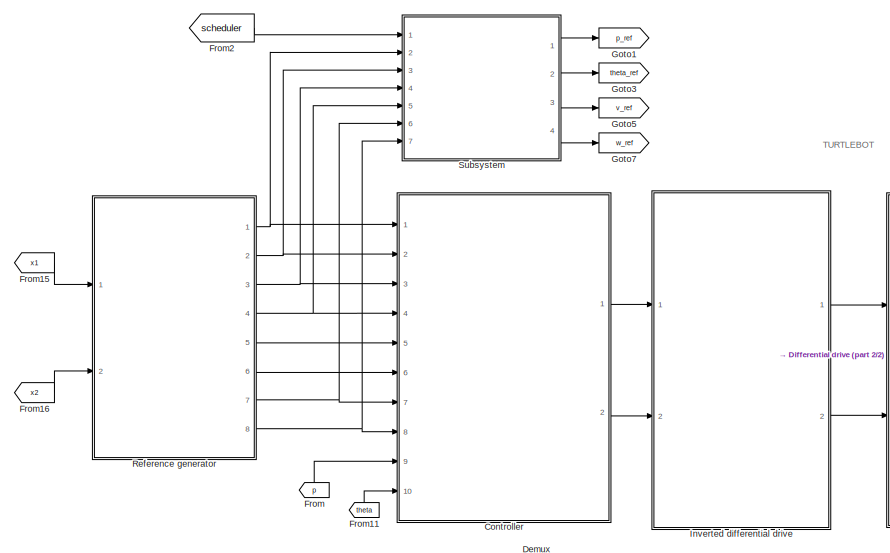
[diagram: root canvas - part 1/2, middle left region]
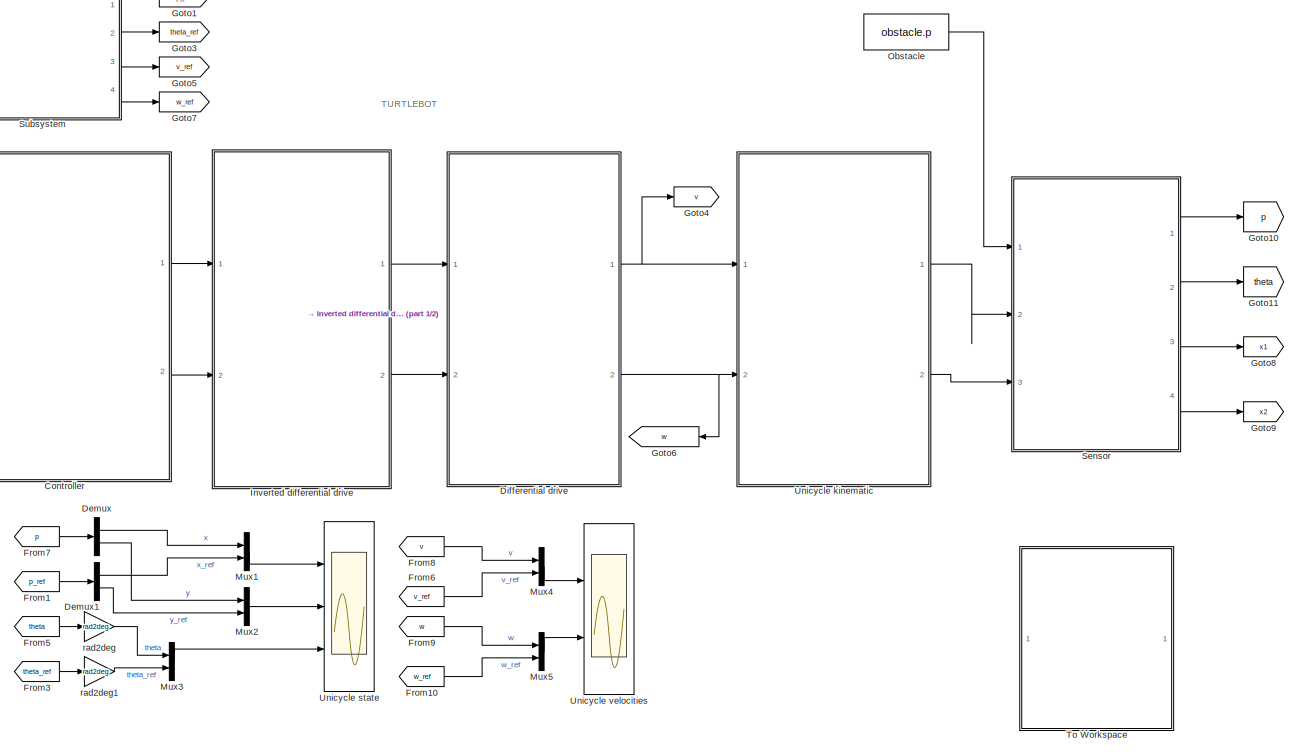
[diagram: root canvas - part 2/2, most of the canvas]
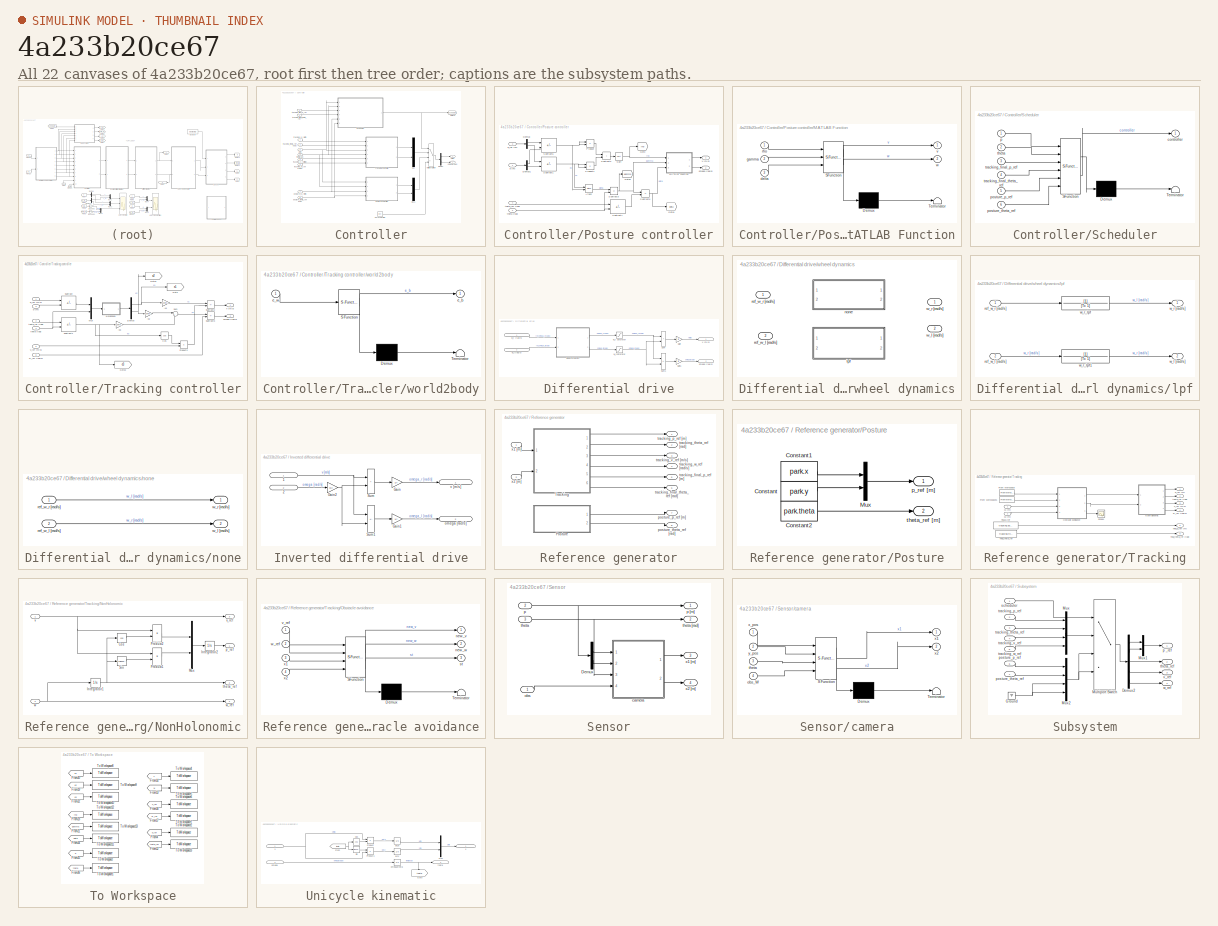
[diagram: thumbnail index - all 22 canvases of the model, root first then tree order]
MODEL slx_4a233b20ce67
KIND model
CONFIG AbsTol = auto
CONFIG EnableMultiTasking = off
CONFIG FixedStep = simulation.step_size
CONFIG MaxStep = auto
CONFIG MinStep = auto
CONFIG PreLoadFcn = % initialize variables\ninitializeUnicycleModel;
CONFIG RelTol = 1e-5
CONFIG SampleTimeConstraint = Unconstrained
CONFIG SolverName = FixedStepAuto
CONFIG StartTime = 0.0
CONFIG StopTime = simulation.stop_time
BLOCK [SubSystem] Controller
  Ports = [10, 2]
  RequestExecContextInheritance = off
BLOCK [Demux] Controller/Demux
  Outputs = 2
  Ports = [1, 2]
BLOCK [Goto] Controller/Goto10
  GotoTag = scheduler
  TagVisibility = global
BLOCK [MultiPortSwitch] Controller/Multiport Switch
  InputSameDT = off
  Ports = [4, 1]
  SaturateOnIntegerOverflow = off
BLOCK [Mux] Controller/Mux
  DisplayOption = bar
  Inputs = 2
  Ports = [2, 1]
BLOCK [Mux] Controller/Mux1
  DisplayOption = bar
  Inputs = 2
  Ports = [2, 1]
BLOCK [SubSystem] Controller/Posture controller
  Ports = [4, 2]
  RequestExecContextInheritance = off
BLOCK [Trigonometry] Controller/Posture controller/Atan2
  Operator = atan2
  Ports = [2, 1]
BLOCK [Demux] Controller/Posture controller/Demux
  Outputs = 2
  Ports = [1, 2]
BLOCK [Demux] Controller/Posture controller/Demux1
  Outputs = 2
  Ports = [1, 2]
BLOCK [Goto] Controller/Posture controller/Goto
  GotoTag = rho
  TagVisibility = global
BLOCK [Goto] Controller/Posture controller/Goto1
  GotoTag = delta
  TagVisibility = global
BLOCK [Goto] Controller/Posture controller/Goto2
  GotoTag = gamma
  TagVisibility = global
BLOCK [SubSystem] Controller/Posture controller/MATLAB Function
  ErrorFcn = Stateflow.Translate.translate
  PermitHierarchicalResolution = ExplicitOnly
  Ports = [3, 2]
  RequestExecContextInheritance = off
  SFBlockType = MATLAB Function
  TreatAsAtomicUnit = on
BLOCK [Demux] Controller/Posture controller/MATLAB Function/ Demux 
  Outputs = 1
  Ports = [1, 1]
BLOCK [S-Function] Controller/Posture controller/MATLAB Function/ SFunction 
  EnableBusSupport = on
  FunctionName = sf_sfun
  Parameters = controller
  PortCounts = [3 3]
  Ports = [3, 3]
  SFcnIsStateOwnerBlock = off
  SFunctionDeploymentMode = off
  Tag = Stateflow S-Function 5
BLOCK [Terminator] Controller/Posture controller/MATLAB Function/ Terminator 
BLOCK [Inport] Controller/Posture controller/MATLAB Function/delta
  Port = 3
BLOCK [Inport] Controller/Posture controller/MATLAB Function/gamma
  Port = 2
BLOCK [Inport] Controller/Posture controller/MATLAB Function/rho
BLOCK [Outport] Controller/Posture controller/MATLAB Function/v
BLOCK [Outport] Controller/Posture controller/MATLAB Function/w
  Port = 2
BLOCK [Product] Controller/Posture controller/Product
  Ports = [2, 1]
BLOCK [Product] Controller/Posture controller/Product1
  Ports = [2, 1]
BLOCK [Sqrt] Controller/Posture controller/Sqrt
BLOCK [Sum] Controller/Posture controller/Subtract1
  IconShape = rectangular
  Inputs = +-
  Ports = [2, 1]
BLOCK [Sum] Controller/Posture controller/Subtract2
  IconShape = rectangular
  Ports = [2, 1]
BLOCK [Sum] Controller/Posture controller/Subtract3
  IconShape = rectangular
  Inputs = +-
  Ports = [2, 1]
BLOCK [Sum] Controller/Posture controller/Subtract5
  IconShape = rectangular
  Inputs = +-
  Ports = [2, 1]
BLOCK [Sum] Controller/Posture controller/Subtract6
  IconShape = rectangular
  Inputs = +-
  Ports = [2, 1]
BLOCK [Sum] Controller/Posture controller/Subtract7
  IconShape = rectangular
  Inputs = +-
  Ports = [2, 1]
BLOCK [Outport] Controller/Posture controller/omega [rad//s]
  Port = 2
BLOCK [Inport] Controller/Posture controller/p [m]
BLOCK [Inport] Controller/Posture controller/p_ref [m]
  Port = 3
BLOCK [Inport] Controller/Posture controller/theta [rad]
  Port = 2
BLOCK [Inport] Controller/Posture controller/theta_ref [rad]
  Port = 4
BLOCK [Outport] Controller/Posture controller/v [m//s]
BLOCK [SubSystem] Controller/Scheduler
  ErrorFcn = Stateflow.Translate.translate
  PermitHierarchicalResolution = ExplicitOnly
  Ports = [6, 1]
  RequestExecContextInheritance = off
  SFBlockType = MATLAB Function
  TreatAsAtomicUnit = on
BLOCK [Demux] Controller/Scheduler/ Demux 
  Outputs = 1
  Ports = [1, 1]
BLOCK [S-Function] Controller/Scheduler/ SFunction 
  EnableBusSupport = on
  FunctionName = sf_sfun
  Parameters = scheduler,simulation
  PortCounts = [6 2]
  Ports = [6, 2]
  SFcnIsStateOwnerBlock = off
  SFunctionDeploymentMode = off
  Tag = Stateflow S-Function 4
BLOCK [Terminator] Controller/Scheduler/ Terminator 
BLOCK [Outport] Controller/Scheduler/controller
BLOCK [Inport] Controller/Scheduler/p
BLOCK [Inport] Controller/Scheduler/posture_p_ref
  Port = 5
BLOCK [Inport] Controller/Scheduler/posture_theta_ref
  Port = 6
BLOCK [Inport] Controller/Scheduler/theta
  Port = 2
BLOCK [Inport] Controller/Scheduler/tracking_final_p_ref
  Port = 3
BLOCK [Inport] Controller/Scheduler/tracking_final_theta_ref
  Port = 4
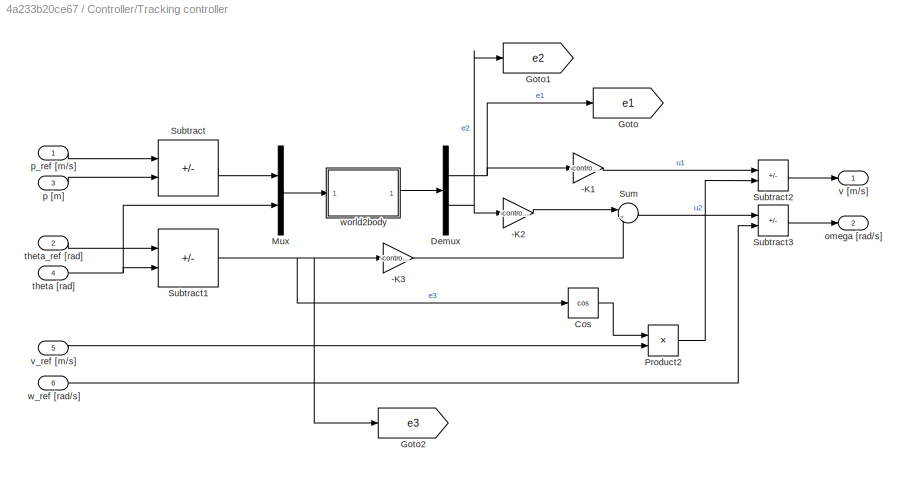
BLOCK [SubSystem] Controller/Tracking controller
  Ports = [6, 2]
  RequestExecContextInheritance = off
BLOCK [Gain] Controller/Tracking controller/-K1
  Gain = -controller.tracking.K1
BLOCK [Gain] Controller/Tracking controller/-K2
  Gain = -controller.tracking.K2
BLOCK [Gain] Controller/Tracking controller/-K3
  Gain = -controller.tracking.K3
BLOCK [Trigonometry] Controller/Tracking controller/Cos
  Operator = cos
  Ports = [1, 1]
BLOCK [Demux] Controller/Tracking controller/Demux
  Outputs = 2
  Ports = [1, 2]
BLOCK [Goto] Controller/Tracking controller/Goto
  GotoTag = e1
  TagVisibility = global
BLOCK [Goto] Controller/Tracking controller/Goto1
  GotoTag = e2
  TagVisibility = global
BLOCK [Goto] Controller/Tracking controller/Goto2
  GotoTag = e3
  TagVisibility = global
BLOCK [Mux] Controller/Tracking controller/Mux
  DisplayOption = bar
  Inputs = 2
  Ports = [2, 1]
BLOCK [Product] Controller/Tracking controller/Product2
  Ports = [2, 1]
BLOCK [Sum] Controller/Tracking controller/Subtract
  IconShape = rectangular
  Inputs = +-
  Ports = [2, 1]
BLOCK [Sum] Controller/Tracking controller/Subtract1
  IconShape = rectangular
  Inputs = +-
  Ports = [2, 1]
BLOCK [Sum] Controller/Tracking controller/Subtract2
  IconShape = rectangular
  Inputs = -+
  Ports = [2, 1]
BLOCK [Sum] Controller/Tracking controller/Subtract3
  IconShape = rectangular
  Inputs = -+
  Ports = [2, 1]
BLOCK [Sum] Controller/Tracking controller/Sum
  Inputs = |++
  Ports = [2, 1]
BLOCK [Outport] Controller/Tracking controller/omega [rad//s]
  Port = 2
BLOCK [Inport] Controller/Tracking controller/p [m]
  Port = 3
BLOCK [Inport] Controller/Tracking controller/p_ref [m//s]
BLOCK [Inport] Controller/Tracking controller/theta [rad]
  Port = 4
BLOCK [Inport] Controller/Tracking controller/theta_ref [rad]
  Port = 2
BLOCK [Outport] Controller/Tracking controller/v [m//s]
BLOCK [Inport] Controller/Tracking controller/v_ref [m//s]
  Port = 5
BLOCK [Inport] Controller/Tracking controller/w_ref [rad//s]
  Port = 6
BLOCK [SubSystem] Controller/Tracking controller/world2body
  ErrorFcn = Stateflow.Translate.translate
  PermitHierarchicalResolution = ExplicitOnly
  Ports = [1, 1]
  RequestExecContextInheritance = off
  SFBlockType = MATLAB Function
  TreatAsAtomicUnit = on
BLOCK [Demux] Controller/Tracking controller/world2body/ Demux 
  Outputs = 1
  Ports = [1, 1]
BLOCK [S-Function] Controller/Tracking controller/world2body/ SFunction 
  EnableBusSupport = on
  FunctionName = sf_sfun
  PortCounts = [1 2]
  Ports = [1, 2]
  SFcnIsStateOwnerBlock = off
  SFunctionDeploymentMode = off
  Tag = Stateflow S-Function 3
BLOCK [Terminator] Controller/Tracking controller/world2body/ Terminator 
BLOCK [Outport] Controller/Tracking controller/world2body/e_b
BLOCK [Inport] Controller/Tracking controller/world2body/e_w
BLOCK [Constant] Controller/Zero controller
  Value = [0 0]
BLOCK [Outport] Controller/omega [rad//s]
  Port = 2
BLOCK [Inport] Controller/p [m]
  Port = 9
BLOCK [Inport] Controller/posture_p_ref [m]
  Port = 7
BLOCK [Inport] Controller/posture_theta_ref [rad]
  Port = 8
BLOCK [Inport] Controller/theta [rad]
  Port = 10
BLOCK [Inport] Controller/tracking_final_p_ref
  Port = 5
BLOCK [Inport] Controller/tracking_final_theta_ref
  Port = 6
BLOCK [Inport] Controller/tracking_p_ref [m]
BLOCK [Inport] Controller/tracking_theta_ref [rad]
  Port = 2
BLOCK [Inport] Controller/tracking_v_ref [m//s]
  Port = 3
BLOCK [Inport] Controller/tracking_w_ref [rad//s]
  Port = 4
BLOCK [Outport] Controller/v [m//s]
BLOCK [Demux] Demux
  Outputs = 2
  Ports = [1, 2]
BLOCK [Demux] Demux1
  Outputs = 2
  Ports = [1, 2]
BLOCK [SubSystem] Differential drive
  Ports = [2, 2]
  RequestExecContextInheritance = off
BLOCK [Gain] Differential drive/Gain
  Gain = r/2
BLOCK [Gain] Differential drive/Gain1
  Gain = r/d
BLOCK [Sum] Differential drive/Sum
  IconShape = rectangular
  Ports = [2, 1]
BLOCK [Sum] Differential drive/Sum1
  IconShape = rectangular
  Inputs = +-
  Ports = [2, 1]
BLOCK [Outport] Differential drive/omega [rad//s]
  IconDisplay = Signal name
  Port = 2
  Unit = rad/s
BLOCK [Outport] Differential drive/v [m//s]
  IconDisplay = Signal name
  Unit = m/s
BLOCK [Inport] Differential drive/w_l [rad//s]
  IconDisplay = Signal name
  Port = 2
  Unit = rad/s
BLOCK [Saturate] Differential drive/w_l saturator
  LowerLimit = wheelsSpeedLowerLimit
  UpperLimit = wheelsSpeedUpperLimit
BLOCK [Inport] Differential drive/w_r [rad//s]
  IconDisplay = Signal name
  Unit = rad/s
BLOCK [Saturate] Differential drive/w_r saturator
  LowerLimit = wheelsSpeedLowerLimit
  UpperLimit = wheelsSpeedUpperLimit
BLOCK [SubSystem] Differential drive/wheel dynamics
  Ports = [2, 2]
  RequestExecContextInheritance = off
  Variant = on
BLOCK [SubSystem] Differential drive/wheel dynamics/lpf
  Ports = [2, 2]
  RequestExecContextInheritance = off
  VariantControl = wheelDyEn==true
BLOCK [Inport] Differential drive/wheel dynamics/lpf/ref_w_l [rad//s]
  Port = 2
BLOCK [Inport] Differential drive/wheel dynamics/lpf/ref_w_r [rad//s]
BLOCK [Outport] Differential drive/wheel dynamics/lpf/w_l [rad//s]
  Port = 2
BLOCK [Outport] Differential drive/wheel dynamics/lpf/w_r [rad//s]
BLOCK [TransferFcn] Differential drive/wheel dynamics/lpf/w_r_lpf
  ContinuousStateAttributes = 'w_r_lpf'
  Denominator = [Tc 1]
BLOCK [TransferFcn] Differential drive/wheel dynamics/lpf/w_r_lpf1
  ContinuousStateAttributes = 'w_r_lpf'
  Denominator = [Tc 1]
BLOCK [SubSystem] Differential drive/wheel dynamics/none
  Ports = [2, 2]
  RequestExecContextInheritance = off
  VariantControl = wheelDyEn==false
BLOCK [Inport] Differential drive/wheel dynamics/none/ref_w_l [rad//s]
  Port = 2
BLOCK [Inport] Differential drive/wheel dynamics/none/ref_w_r [rad//s]
BLOCK [Outport] Differential drive/wheel dynamics/none/w_l [rad//s]
  Port = 2
BLOCK [Outport] Differential drive/wheel dynamics/none/w_r [rad//s]
BLOCK [Inport] Differential drive/wheel dynamics/ref_w_l [rad//s]
  Port = 2
BLOCK [Inport] Differential drive/wheel dynamics/ref_w_r [rad//s]
BLOCK [Outport] Differential drive/wheel dynamics/w_l [rad//s]
  Port = 2
BLOCK [Outport] Differential drive/wheel dynamics/w_r [rad//s]
BLOCK [From] From
  GotoTag = p
  NameLocation = right
  TagVisibility = global
BLOCK [From] From1
  GotoTag = p_ref
  TagVisibility = global
BLOCK [From] From10
  GotoTag = w_ref
  TagVisibility = global
BLOCK [From] From11
  GotoTag = theta
  NameLocation = right
  TagVisibility = global
BLOCK [From] From15
  GotoTag = x1
BLOCK [From] From16
  GotoTag = x2
BLOCK [From] From2
  GotoTag = scheduler
  TagVisibility = global
BLOCK [From] From3
  GotoTag = theta_ref
  TagVisibility = global
BLOCK [From] From5
  GotoTag = theta
  TagVisibility = global
BLOCK [From] From6
  GotoTag = v_ref
  TagVisibility = global
BLOCK [From] From7
  GotoTag = p
  TagVisibility = global
BLOCK [From] From8
  GotoTag = v
  TagVisibility = global
BLOCK [From] From9
  GotoTag = w
  TagVisibility = global
BLOCK [Goto] Goto1
  GotoTag = p_ref
  TagVisibility = global
BLOCK [Goto] Goto10
  GotoTag = p
  TagVisibility = global
BLOCK [Goto] Goto11
  GotoTag = theta
  TagVisibility = global
BLOCK [Goto] Goto3
  GotoTag = theta_ref
  TagVisibility = global
BLOCK [Goto] Goto4
  GotoTag = v
  TagVisibility = global
BLOCK [Goto] Goto5
  GotoTag = v_ref
  TagVisibility = global
BLOCK [Goto] Goto6
  GotoTag = w
  NameLocation = top
  TagVisibility = global
BLOCK [Goto] Goto7
  GotoTag = w_ref
  TagVisibility = global
BLOCK [Goto] Goto8
  GotoTag = x1
BLOCK [Goto] Goto9
  GotoTag = x2
BLOCK [SubSystem] Inverted differential drive
  Ports = [2, 2]
  RequestExecContextInheritance = off
BLOCK [Inport] Inverted differential drive/1
  IconDisplay = Signal name
  Unit = m/s
BLOCK [Inport] Inverted differential drive/2
  IconDisplay = Signal name
  Port = 2
  Unit = rad/s
BLOCK [Gain] Inverted differential drive/Gain
  Gain = 1/r
BLOCK [Gain] Inverted differential drive/Gain1
  Gain = 1/r
BLOCK [Gain] Inverted differential drive/Gain2
  Gain = d/2
BLOCK [Sum] Inverted differential drive/Sum
  IconShape = rectangular
  Ports = [2, 1]
BLOCK [Sum] Inverted differential drive/Sum1
  IconShape = rectangular
  Inputs = +-
  Ports = [2, 1]
BLOCK [Outport] Inverted differential drive/omega [rad//s]
  IconDisplay = Signal name
  Port = 2
  Unit = rad/s
BLOCK [Outport] Inverted differential drive/v [m//s]
  IconDisplay = Signal name
  Unit = rad/s
BLOCK [Mux] Mux1
  DisplayOption = bar
  Inputs = 2
  Ports = [2, 1]
BLOCK [Mux] Mux2
  DisplayOption = bar
  Inputs = 2
  Ports = [2, 1]
BLOCK [Mux] Mux3
  DisplayOption = bar
  Inputs = 2
  Ports = [2, 1]
BLOCK [Mux] Mux4
  DisplayOption = bar
  Inputs = 2
  Ports = [2, 1]
BLOCK [Mux] Mux5
  DisplayOption = bar
  Inputs = 2
  Ports = [2, 1]
BLOCK [Constant] Obstacle
  Value = obstacle.p
BLOCK [SubSystem] Reference generator
  Ports = [2, 8]
  RequestExecContextInheritance = off
BLOCK [SubSystem] Reference generator/Posture
  Ports = [0, 2]
  RequestExecContextInheritance = off
BLOCK [Constant] Reference generator/Posture/Constant
  SampleTime = unicycle.diffDrive.Td
  Value = park.y
BLOCK [Constant] Reference generator/Posture/Constant1
  SampleTime = unicycle.diffDrive.Td
  Value = park.x
BLOCK [Constant] Reference generator/Posture/Constant2
  SampleTime = unicycle.diffDrive.Td
  Value = park.theta
BLOCK [Mux] Reference generator/Posture/Mux
  DisplayOption = bar
  Inputs = 2
  Ports = [2, 1]
BLOCK [Outport] Reference generator/Posture/p_ref [m]
BLOCK [Outport] Reference generator/Posture/theta_ref [m]
  Port = 2
BLOCK [SubSystem] Reference generator/Tracking
  Ports = [2, 6]
  RequestExecContextInheritance = off
BLOCK [FromWorkspace] Reference generator/Tracking/From Workspace
  SampleTime = unicycle.diffDrive.Td
  VariableName = tracking.v_ts
BLOCK [FromWorkspace] Reference generator/Tracking/From Workspace1
  SampleTime = unicycle.diffDrive.Td
  VariableName = tracking.w_ts
BLOCK [SubSystem] Reference generator/Tracking/NonHolonomic
  Ports = [2, 4]
  RequestExecContextInheritance = off
BLOCK [Trigonometry] Reference generator/Tracking/NonHolonomic/Cos
  Operator = cos
  Ports = [1, 1]
BLOCK [Integrator] Reference generator/Tracking/NonHolonomic/Integrator1
  InitialCondition = tracking.theta0
  Ports = [1, 1]
BLOCK [Integrator] Reference generator/Tracking/NonHolonomic/Integrator2
  InitialCondition = [tracking.x0 tracking.y0]
  Ports = [1, 1]
BLOCK [Mux] Reference generator/Tracking/NonHolonomic/Mux
  DisplayOption = bar
  Inputs = 2
  Ports = [2, 1]
BLOCK [Product] Reference generator/Tracking/NonHolonomic/Product1
  Ports = [2, 1]
BLOCK [Product] Reference generator/Tracking/NonHolonomic/Product2
  Ports = [2, 1]
BLOCK [Trigonometry] Reference generator/Tracking/NonHolonomic/Sin
  Ports = [1, 1]
BLOCK [Outport] Reference generator/Tracking/NonHolonomic/p_ref
BLOCK [Outport] Reference generator/Tracking/NonHolonomic/theta_ref
  Port = 2
BLOCK [Inport] Reference generator/Tracking/NonHolonomic/v
BLOCK [Outport] Reference generator/Tracking/NonHolonomic/v_ref
  Port = 3
BLOCK [Inport] Reference generator/Tracking/NonHolonomic/w
  Port = 2
BLOCK [Outport] Reference generator/Tracking/NonHolonomic/w_ref
  Port = 4
BLOCK [SubSystem] Reference generator/Tracking/Obstacle avoidance
  ErrorFcn = Stateflow.Translate.translate
  PermitHierarchicalResolution = ExplicitOnly
  Ports = [4, 3]
  RequestExecContextInheritance = off
  SFBlockType = MATLAB Function
  TreatAsAtomicUnit = on
BLOCK [Demux] Reference generator/Tracking/Obstacle avoidance/ Demux 
  Outputs = 1
  Ports = [1, 1]
BLOCK [S-Function] Reference generator/Tracking/Obstacle avoidance/ SFunction 
  EnableBusSupport = on
  FunctionName = sf_sfun
  Parameters = camera,simulation,unicycle
  PortCounts = [4 4]
  Ports = [4, 4]
  SFcnIsStateOwnerBlock = off
  SFunctionDeploymentMode = off
  Tag = Stateflow S-Function 9
BLOCK [Terminator] Reference generator/Tracking/Obstacle avoidance/ Terminator 
BLOCK [Outport] Reference generator/Tracking/Obstacle avoidance/new_v
BLOCK [Outport] Reference generator/Tracking/Obstacle avoidance/new_w
  Port = 2
BLOCK [Outport] Reference generator/Tracking/Obstacle avoidance/st
  Port = 3
BLOCK [Inport] Reference generator/Tracking/Obstacle avoidance/v_ref
BLOCK [Inport] Reference generator/Tracking/Obstacle avoidance/w_ref
  Port = 2
BLOCK [Inport] Reference generator/Tracking/Obstacle avoidance/x1
  Port = 3
BLOCK [Inport] Reference generator/Tracking/Obstacle avoidance/x2
  Port = 4
BLOCK [Scope] Reference generator/Tracking/Scope1
  Floating = off
  NumInputPorts = 1
  Ports = [1]
  ScopeSpecificationString = Simulink.scopes.TimeScopeBlockCfg('CurrentConfiguration', extmgr.ConfigurationSet(extmgr.Configuration('Core','General UI',true),extmgr.Configuration('Core','Source UI',true),extmgr.Configuration('Sources','WiredSimulink',true,'DataLoggingVariableName','ScopeData1'),extmgr.Configuration('Visuals','Time Domain',true,'SerializedDisplays',{struct('MinYLimReal','-0.625','MaxYLimReal','5.625','YLabelRe...<+1397ch>
BLOCK [Constant] Reference generator/Tracking/final_p_ref
  Value = tracking.points(end,:)
BLOCK [Outport] Reference generator/Tracking/final_p_ref [m]
  Port = 5
BLOCK [Constant] Reference generator/Tracking/final_theta_ref
  Value = tracking.theta(end)
BLOCK [Outport] Reference generator/Tracking/final_theta_ref [rad]
  Port = 6
BLOCK [Outport] Reference generator/Tracking/p_ref [m]
BLOCK [Outport] Reference generator/Tracking/theta_ref [rad]
  Port = 2
BLOCK [Outport] Reference generator/Tracking/v_ref [m//s]
  Port = 3
BLOCK [Outport] Reference generator/Tracking/w_ref [rad//s]
  Port = 4
BLOCK [Inport] Reference generator/Tracking/x1 [m]
BLOCK [Inport] Reference generator/Tracking/x2 [m]
  Port = 2
BLOCK [Outport] Reference generator/posture_p_ref [m]
  Port = 7
BLOCK [Outport] Reference generator/posture_theta_ref [rad]
  Port = 8
BLOCK [Outport] Reference generator/tracking_final_p_ref [m]
  Port = 5
BLOCK [Outport] Reference generator/tracking_final_theta_ref [rad]
  Port = 6
BLOCK [Outport] Reference generator/tracking_p_ref [m]
BLOCK [Outport] Reference generator/tracking_theta_ref [rad]
  Port = 2
BLOCK [Outport] Reference generator/tracking_v_ref [m//s]
  Port = 3
BLOCK [Outport] Reference generator/tracking_w_ref [rad//s]
  Port = 4
BLOCK [Inport] Reference generator/x1 [m]
BLOCK [Inport] Reference generator/x2 [m]
  Port = 2
BLOCK [SubSystem] Sensor
  Ports = [3, 4]
  RequestExecContextInheritance = off
BLOCK [Demux] Sensor/Demux
  Outputs = 2
  Ports = [1, 2]
BLOCK [SubSystem] Sensor/camera
  ErrorFcn = Stateflow.Translate.translate
  PermitHierarchicalResolution = ExplicitOnly
  Ports = [4, 2]
  RequestExecContextInheritance = off
  SFBlockType = MATLAB Function
  TreatAsAtomicUnit = on
BLOCK [Demux] Sensor/camera/ Demux 
  Outputs = 1
  Ports = [1, 1]
BLOCK [S-Function] Sensor/camera/ SFunction 
  EnableBusSupport = on
  FunctionName = sf_sfun
  Parameters = camera,unicycle
  PortCounts = [4 3]
  Ports = [4, 3]
  SFcnIsStateOwnerBlock = off
  SFunctionDeploymentMode = off
  Tag = Stateflow S-Function 7
BLOCK [Terminator] Sensor/camera/ Terminator 
BLOCK [Inport] Sensor/camera/obs_W
  Port = 4
BLOCK [Inport] Sensor/camera/theta
  Port = 3
BLOCK [Outport] Sensor/camera/x1
BLOCK [Outport] Sensor/camera/x2
  Port = 2
BLOCK [Inport] Sensor/camera/x_pos
BLOCK [Inport] Sensor/camera/y_pos
  Port = 2
BLOCK [Inport] Sensor/obs
BLOCK [Inport] Sensor/p
  Port = 2
BLOCK [Outport] Sensor/p [m]
BLOCK [Inport] Sensor/theta
  Port = 3
BLOCK [Outport] Sensor/theta [rad]
  Port = 2
BLOCK [Outport] Sensor/x1 [m]
  Port = 3
BLOCK [Outport] Sensor/x2 [m]
  Port = 4
BLOCK [SubSystem] Subsystem
  Ports = [7, 4]
  RequestExecContextInheritance = off
BLOCK [Demux] Subsystem/Demux2
  Outputs = 5
  Ports = [1, 5]
BLOCK [Ground] Subsystem/Ground
BLOCK [MultiPortSwitch] Subsystem/Multiport Switch
  InputSameDT = off
  Ports = [4, 1]
  SaturateOnIntegerOverflow = off
BLOCK [Mux] Subsystem/Mux
  DisplayOption = bar
  Ports = [4, 1]
BLOCK [Mux] Subsystem/Mux1
  DisplayOption = bar
  Inputs = 2
  Ports = [2, 1]
BLOCK [Mux] Subsystem/Mux2
  DisplayOption = bar
  Ports = [4, 1]
BLOCK [Outport] Subsystem/p _ref
BLOCK [Inport] Subsystem/posture_p_ref
  Port = 6
BLOCK [Inport] Subsystem/posture_theta_ref
  Port = 7
BLOCK [Inport] Subsystem/scheduler
BLOCK [Outport] Subsystem/theta_ref
  Port = 2
BLOCK [Inport] Subsystem/tracking_p_ref
  Port = 2
BLOCK [Inport] Subsystem/tracking_theta_ref
  Port = 3
BLOCK [Inport] Subsystem/tracking_v_ref
  Port = 4
BLOCK [Inport] Subsystem/tracking_w_ref
  Port = 5
BLOCK [Outport] Subsystem/v_ref
  Port = 3
BLOCK [Outport] Subsystem/w_ref
  Port = 4
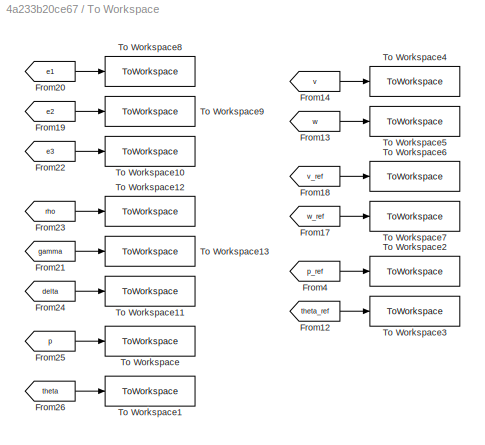
BLOCK [SubSystem] To Workspace
  Ports = []
  RequestExecContextInheritance = off
BLOCK [From] To Workspace/From12
  GotoTag = theta_ref
  TagVisibility = global
BLOCK [From] To Workspace/From13
  GotoTag = w
  TagVisibility = global
BLOCK [From] To Workspace/From14
  GotoTag = v
  TagVisibility = global
BLOCK [From] To Workspace/From17
  GotoTag = w_ref
  TagVisibility = global
BLOCK [From] To Workspace/From18
  GotoTag = v_ref
  TagVisibility = global
BLOCK [From] To Workspace/From19
  GotoTag = e2
  TagVisibility = global
BLOCK [From] To Workspace/From20
  GotoTag = e1
  TagVisibility = global
BLOCK [From] To Workspace/From21
  GotoTag = gamma
  TagVisibility = global
BLOCK [From] To Workspace/From22
  GotoTag = e3
  TagVisibility = global
BLOCK [From] To Workspace/From23
  GotoTag = rho
  TagVisibility = global
BLOCK [From] To Workspace/From24
  GotoTag = delta
  TagVisibility = global
BLOCK [From] To Workspace/From25
  GotoTag = p
  TagVisibility = global
BLOCK [From] To Workspace/From26
  GotoTag = theta
  TagVisibility = global
BLOCK [From] To Workspace/From4
  GotoTag = p_ref
  TagVisibility = global
BLOCK [ToWorkspace] To Workspace/To Workspace
  FixptAsFi = on
  MaxDataPoints = inf
  Ports = [1]
  SampleTime = -1
  SaveFormat = Timeseries
  VariableName = p
BLOCK [ToWorkspace] To Workspace/To Workspace1
  FixptAsFi = on
  MaxDataPoints = inf
  Ports = [1]
  SampleTime = -1
  SaveFormat = Timeseries
  VariableName = theta
BLOCK [ToWorkspace] To Workspace/To Workspace10
  FixptAsFi = on
  MaxDataPoints = inf
  Ports = [1]
  SampleTime = -1
  SaveFormat = Timeseries
  VariableName = e3
BLOCK [ToWorkspace] To Workspace/To Workspace11
  FixptAsFi = on
  MaxDataPoints = inf
  Ports = [1]
  SampleTime = -1
  SaveFormat = Timeseries
  VariableName = delta
BLOCK [ToWorkspace] To Workspace/To Workspace12
  FixptAsFi = on
  MaxDataPoints = inf
  Ports = [1]
  SampleTime = -1
  SaveFormat = Timeseries
  VariableName = rho
BLOCK [ToWorkspace] To Workspace/To Workspace13
  FixptAsFi = on
  MaxDataPoints = inf
  Ports = [1]
  SampleTime = -1
  SaveFormat = Timeseries
  VariableName = gamma
BLOCK [ToWorkspace] To Workspace/To Workspace2
  FixptAsFi = on
  MaxDataPoints = inf
  Ports = [1]
  SampleTime = -1
  SaveFormat = Timeseries
  VariableName = p_ref
BLOCK [ToWorkspace] To Workspace/To Workspace3
  FixptAsFi = on
  MaxDataPoints = inf
  Ports = [1]
  SampleTime = -1
  SaveFormat = Timeseries
  VariableName = theta_ref
BLOCK [ToWorkspace] To Workspace/To Workspace4
  FixptAsFi = on
  MaxDataPoints = inf
  Ports = [1]
  SampleTime = -1
  SaveFormat = Timeseries
  VariableName = v
BLOCK [ToWorkspace] To Workspace/To Workspace5
  FixptAsFi = on
  MaxDataPoints = inf
  Ports = [1]
  SampleTime = -1
  SaveFormat = Timeseries
  VariableName = w
BLOCK [ToWorkspace] To Workspace/To Workspace6
  FixptAsFi = on
  MaxDataPoints = inf
  Ports = [1]
  SampleTime = -1
  SaveFormat = Timeseries
  VariableName = v_ref
BLOCK [ToWorkspace] To Workspace/To Workspace7
  FixptAsFi = on
  MaxDataPoints = inf
  Ports = [1]
  SampleTime = -1
  SaveFormat = Timeseries
  VariableName = w_ref
BLOCK [ToWorkspace] To Workspace/To Workspace8
  FixptAsFi = on
  MaxDataPoints = inf
  Ports = [1]
  SampleTime = -1
  SaveFormat = Timeseries
  VariableName = e1
BLOCK [ToWorkspace] To Workspace/To Workspace9
  FixptAsFi = on
  MaxDataPoints = inf
  Ports = [1]
  SampleTime = -1
  SaveFormat = Timeseries
  VariableName = e2
BLOCK [SubSystem] Unicycle kinematic
  Ports = [2, 2]
  RequestExecContextInheritance = off
BLOCK [Trigonometry] Unicycle kinematic/Cos
  Operator = cos
  Ports = [1, 1]
BLOCK [From] Unicycle kinematic/From
  GotoTag = theta
BLOCK [Goto] Unicycle kinematic/Goto
  GotoTag = theta
  NameLocation = left
BLOCK [Mux] Unicycle kinematic/Mux
  DisplayOption = bar
  Inputs = 2
  Ports = [2, 1]
BLOCK [Product] Unicycle kinematic/Product
  Ports = [2, 1]
BLOCK [Product] Unicycle kinematic/Product1
  Ports = [2, 1]
BLOCK [Trigonometry] Unicycle kinematic/Sin
  Ports = [1, 1]
BLOCK [Integrator] Unicycle kinematic/dx2x
  ContinuousStateAttributes = 'pos_x'
  InitialCondition = x0
  Ports = [1, 1]
BLOCK [Integrator] Unicycle kinematic/dy2y
  ContinuousStateAttributes = 'pos_y'
  InitialCondition = y0
  Ports = [1, 1]
BLOCK [Inport] Unicycle kinematic/omega
  IconDisplay = Signal name
  Port = 2
  PortDimensions = 1
BLOCK [Integrator] Unicycle kinematic/omega2theta
  ContinuousStateAttributes = 'theta'
  InitialCondition = theta0
  Ports = [1, 1]
BLOCK [Outport] Unicycle kinematic/theta
  IconDisplay = Signal name
  Port = 2
  PortDimensions = 1
BLOCK [Inport] Unicycle kinematic/v
  IconDisplay = Signal name
  PortDimensions = 1
BLOCK [Outport] Unicycle kinematic/x
  IconDisplay = Signal name
  PortDimensions = 2
BLOCK [Scope] Unicycle state
  Floating = off
  NumInputPorts = 3
  Ports = [3]
  ScopeSpecificationString = Simulink.scopes.TimeScopeBlockCfg('CurrentConfiguration', extmgr.ConfigurationSet(extmgr.Configuration('Core','General UI',true),extmgr.Configuration('Core','Source UI',true),extmgr.Configuration('Sources','WiredSimulink',true,'DataLoggingVariableName','ScopeData1'),extmgr.Configuration('Visuals','Time Domain',true,'SerializedDisplays',{struct('MinYLimReal','2.4441','MaxYLimReal','6.07356','YLabel...<+2776ch>
BLOCK [Scope] Unicycle velocities
  Floating = off
  NumInputPorts = 2
  Ports = [2]
  ScopeSpecificationString = Simulink.scopes.TimeScopeBlockCfg('CurrentConfiguration', extmgr.ConfigurationSet(extmgr.Configuration('Core','General UI',true),extmgr.Configuration('Core','Source UI',true),extmgr.Configuration('Sources','WiredSimulink',true,'DataLoggingVariableName','ScopeData2'),extmgr.Configuration('Visuals','Time Domain',true,'SerializedDisplays',{struct('MinYLimReal','-0.28654','MaxYLimReal','0.92073','YLab...<+2057ch>
BLOCK [Gain] rad2deg
  Gain = rad2deg
BLOCK [Gain] rad2deg1
  Gain = rad2deg
ANNOTATION (root): TURTLEBOT
LINE Controller/Demux:1 -> Controller/v [m//s]:1
LINE Controller/Demux:2 -> Controller/omega [rad//s]:1
LINE Controller/Multiport Switch:1 -> Controller/Demux:1
LINE Controller/Mux1:1 -> Controller/Multiport Switch:3
LINE Controller/Mux:1 -> Controller/Multiport Switch:2
LINE Controller/Posture controller/Atan2:1 -> Controller/Posture controller/Subtract3:1
LINE Controller/Posture controller/Demux1:1 -> Controller/Posture controller/Subtract6:2
LINE Controller/Posture controller/Demux1:2 -> Controller/Posture controller/Subtract1:2
LINE Controller/Posture controller/Demux:1 -> Controller/Posture controller/Subtract6:1
LINE Controller/Posture controller/Demux:2 -> Controller/Posture controller/Subtract1:1
LINE Controller/Posture controller/MATLAB Function:1 -> Controller/Posture controller/v [m//s]:1
LINE Controller/Posture controller/MATLAB Function:2 -> Controller/Posture controller/omega [rad//s]:1
LINE Controller/Posture controller/Product1:1 -> Controller/Posture controller/Subtract2:2
LINE Controller/Posture controller/Product:1 -> Controller/Posture controller/Subtract2:1
NET Controller/Posture controller/Sqrt:1 -> Controller/Posture controller/Goto:1, Controller/Posture controller/MATLAB Function:1
NET Controller/Posture controller/Subtract1:1 -> Controller/Posture controller/Atan2:1, Controller/Posture controller/Product1:1, Controller/Posture controller/Product1:2
LINE Controller/Posture controller/Subtract2:1 -> Controller/Posture controller/Sqrt:1
NET Controller/Posture controller/Subtract3:1 -> Controller/Posture controller/Goto2:1, Controller/Posture controller/MATLAB Function:2, Controller/Posture controller/Subtract5:1
NET Controller/Posture controller/Subtract5:1 -> Controller/Posture controller/Goto1:1, Controller/Posture controller/MATLAB Function:3
NET Controller/Posture controller/Subtract6:1 -> Controller/Posture controller/Atan2:2, Controller/Posture controller/Product:1, Controller/Posture controller/Product:2
LINE Controller/Posture controller/Subtract7:1 -> Controller/Posture controller/Subtract5:2
LINE Controller/Posture controller/p [m]:1 -> Controller/Posture controller/Demux1:1
LINE Controller/Posture controller/p_ref [m]:1 -> Controller/Posture controller/Demux:1
NET Controller/Posture controller/theta [rad]:1 -> Controller/Posture controller/Subtract3:2, Controller/Posture controller/Subtract7:2
LINE Controller/Posture controller/theta_ref [rad]:1 -> Controller/Posture controller/Subtract7:1
LINE Controller/Posture controller:1 -> Controller/Mux1:1
LINE Controller/Posture controller:2 -> Controller/Mux1:2
NET Controller/Scheduler:1 -> Controller/Goto10:1, Controller/Multiport Switch:1
LINE Controller/Tracking controller/-K1:1 -> Controller/Tracking controller/Subtract2:1
LINE Controller/Tracking controller/-K2:1 -> Controller/Tracking controller/Sum:1
LINE Controller/Tracking controller/-K3:1 -> Controller/Tracking controller/Sum:2
LINE Controller/Tracking controller/Cos:1 -> Controller/Tracking controller/Product2:1
NET Controller/Tracking controller/Demux:1 -> Controller/Tracking controller/-K1:1, Controller/Tracking controller/Goto:1
NET Controller/Tracking controller/Demux:2 -> Controller/Tracking controller/-K2:1, Controller/Tracking controller/Goto1:1
LINE Controller/Tracking controller/Mux:1 -> Controller/Tracking controller/world2body:1
LINE Controller/Tracking controller/Product2:1 -> Controller/Tracking controller/Subtract2:2
NET Controller/Tracking controller/Subtract1:1 -> Controller/Tracking controller/-K3:1, Controller/Tracking controller/Cos:1, Controller/Tracking controller/Goto2:1
LINE Controller/Tracking controller/Subtract2:1 -> Controller/Tracking controller/v [m//s]:1
LINE Controller/Tracking controller/Subtract3:1 -> Controller/Tracking controller/omega [rad//s]:1
LINE Controller/Tracking controller/Subtract:1 -> Controller/Tracking controller/Mux:1
LINE Controller/Tracking controller/Sum:1 -> Controller/Tracking controller/Subtract3:1
LINE Controller/Tracking controller/p [m]:1 -> Controller/Tracking controller/Subtract:2
LINE Controller/Tracking controller/p_ref [m//s]:1 -> Controller/Tracking controller/Subtract:1
NET Controller/Tracking controller/theta [rad]:1 -> Controller/Tracking controller/Mux:2, Controller/Tracking controller/Subtract1:2
LINE Controller/Tracking controller/theta_ref [rad]:1 -> Controller/Tracking controller/Subtract1:1
LINE Controller/Tracking controller/v_ref [m//s]:1 -> Controller/Tracking controller/Product2:2
LINE Controller/Tracking controller/w_ref [rad//s]:1 -> Controller/Tracking controller/Subtract3:2
LINE Controller/Tracking controller/world2body:1 -> Controller/Tracking controller/Demux:1
LINE Controller/Tracking controller:1 -> Controller/Mux:1
LINE Controller/Tracking controller:2 -> Controller/Mux:2
LINE Controller/Zero controller:1 -> Controller/Multiport Switch:4
NET Controller/p [m]:1 -> Controller/Posture controller:1, Controller/Scheduler:1, Controller/Tracking controller:3
NET Controller/posture_p_ref [m]:1 -> Controller/Posture controller:3, Controller/Scheduler:5
NET Controller/posture_theta_ref [rad]:1 -> Controller/Posture controller:4, Controller/Scheduler:6
NET Controller/theta [rad]:1 -> Controller/Posture controller:2, Controller/Scheduler:2, Controller/Tracking controller:4
LINE Controller/tracking_final_p_ref:1 -> Controller/Scheduler:3
LINE Controller/tracking_final_theta_ref:1 -> Controller/Scheduler:4
LINE Controller/tracking_p_ref [m]:1 -> Controller/Tracking controller:1
LINE Controller/tracking_theta_ref [rad]:1 -> Controller/Tracking controller:2
LINE Controller/tracking_v_ref [m//s]:1 -> Controller/Tracking controller:5
LINE Controller/tracking_w_ref [rad//s]:1 -> Controller/Tracking controller:6
LINE Controller:1 -> Inverted differential drive:1
LINE Controller:2 -> Inverted differential drive:2
LINE Demux1:1 -> Mux1:2
LINE Demux1:2 -> Mux2:2
LINE Demux:1 -> Mux1:1
LINE Demux:2 -> Mux2:1
LINE Differential drive/Gain1:1 -> Differential drive/omega [rad//s]:1
LINE Differential drive/Gain:1 -> Differential drive/v [m//s]:1
LINE Differential drive/Sum1:1 -> Differential drive/Gain1:1
LINE Differential drive/Sum:1 -> Differential drive/Gain:1
LINE Differential drive/w_l [rad//s]:1 -> Differential drive/wheel dynamics:2
NET Differential drive/w_l saturator:1 -> Differential drive/Sum1:2, Differential drive/Sum:2
LINE Differential drive/w_r [rad//s]:1 -> Differential drive/wheel dynamics:1
NET Differential drive/w_r saturator:1 -> Differential drive/Sum1:1, Differential drive/Sum:1
LINE Differential drive/wheel dynamics/lpf/ref_w_l [rad//s]:1 -> Differential drive/wheel dynamics/lpf/w_r_lpf1:1
LINE Differential drive/wheel dynamics/lpf/ref_w_r [rad//s]:1 -> Differential drive/wheel dynamics/lpf/w_r_lpf:1
LINE Differential drive/wheel dynamics/lpf/w_r_lpf1:1 -> Differential drive/wheel dynamics/lpf/w_l [rad//s]:1
LINE Differential drive/wheel dynamics/lpf/w_r_lpf:1 -> Differential drive/wheel dynamics/lpf/w_r [rad//s]:1
LINE Differential drive/wheel dynamics/none/ref_w_l [rad//s]:1 -> Differential drive/wheel dynamics/none/w_l [rad//s]:1
LINE Differential drive/wheel dynamics/none/ref_w_r [rad//s]:1 -> Differential drive/wheel dynamics/none/w_r [rad//s]:1
LINE Differential drive/wheel dynamics:1 -> Differential drive/w_r saturator:1
LINE Differential drive/wheel dynamics:2 -> Differential drive/w_l saturator:1
NET Differential drive:1 -> Goto4:1, Unicycle kinematic:1
NET Differential drive:2 -> Goto6:1, Unicycle kinematic:2
LINE From10:1 -> Mux5:2
LINE From11:1 -> Controller:10
LINE From15:1 -> Reference generator:1
LINE From16:1 -> Reference generator:2
LINE From1:1 -> Demux1:1
LINE From2:1 -> Subsystem:1
LINE From3:1 -> rad2deg1:1
LINE From5:1 -> rad2deg:1
LINE From6:1 -> Mux4:2
LINE From7:1 -> Demux:1
LINE From8:1 -> Mux4:1
LINE From9:1 -> Mux5:1
LINE From:1 -> Controller:9
NET Inverted differential drive/1:1 -> Inverted differential drive/Sum1:1, Inverted differential drive/Sum:1
LINE Inverted differential drive/2:1 -> Inverted differential drive/Gain2:1
LINE Inverted differential drive/Gain1:1 -> Inverted differential drive/omega [rad//s]:1
NET Inverted differential drive/Gain2:1 -> Inverted differential drive/Sum1:2, Inverted differential drive/Sum:2
LINE Inverted differential drive/Gain:1 -> Inverted differential drive/v [m//s]:1
LINE Inverted differential drive/Sum1:1 -> Inverted differential drive/Gain1:1
LINE Inverted differential drive/Sum:1 -> Inverted differential drive/Gain:1
LINE Inverted differential drive:1 -> Differential drive:1
LINE Inverted differential drive:2 -> Differential drive:2
LINE Mux1:1 -> Unicycle state:1
LINE Mux2:1 -> Unicycle state:2
LINE Mux3:1 -> Unicycle state:3
LINE Mux4:1 -> Unicycle velocities:1
LINE Mux5:1 -> Unicycle velocities:2
LINE Obstacle:1 -> Sensor:1
LINE Reference generator/Posture/Constant1:1 -> Reference generator/Posture/Mux:1
LINE Reference generator/Posture/Constant2:1 -> Reference generator/Posture/theta_ref [m]:1
LINE Reference generator/Posture/Constant:1 -> Reference generator/Posture/Mux:2
LINE Reference generator/Posture/Mux:1 -> Reference generator/Posture/p_ref [m]:1
LINE Reference generator/Posture:1 -> Reference generator/posture_p_ref [m]:1
LINE Reference generator/Posture:2 -> Reference generator/posture_theta_ref [rad]:1
LINE Reference generator/Tracking/From Workspace1:1 -> Reference generator/Tracking/Obstacle avoidance:2
LINE Reference generator/Tracking/From Workspace:1 -> Reference generator/Tracking/Obstacle avoidance:1
LINE Reference generator/Tracking/NonHolonomic/Cos:1 -> Reference generator/Tracking/NonHolonomic/Product2:2
NET Reference generator/Tracking/NonHolonomic/Integrator1:1 -> Reference generator/Tracking/NonHolonomic/Cos:1, Reference generator/Tracking/NonHolonomic/Sin:1, Reference generator/Tracking/NonHolonomic/theta_ref:1
LINE Reference generator/Tracking/NonHolonomic/Integrator2:1 -> Reference generator/Tracking/NonHolonomic/p_ref:1
LINE Reference generator/Tracking/NonHolonomic/Mux:1 -> Reference generator/Tracking/NonHolonomic/Integrator2:1
LINE Reference generator/Tracking/NonHolonomic/Product1:1 -> Reference generator/Tracking/NonHolonomic/Mux:2
LINE Reference generator/Tracking/NonHolonomic/Product2:1 -> Reference generator/Tracking/NonHolonomic/Mux:1
LINE Reference generator/Tracking/NonHolonomic/Sin:1 -> Reference generator/Tracking/NonHolonomic/Product1:2
NET Reference generator/Tracking/NonHolonomic/v:1 -> Reference generator/Tracking/NonHolonomic/Product1:1, Reference generator/Tracking/NonHolonomic/Product2:1, Reference generator/Tracking/NonHolonomic/v_ref:1
NET Reference generator/Tracking/NonHolonomic/w:1 -> Reference generator/Tracking/NonHolonomic/Integrator1:1, Reference generator/Tracking/NonHolonomic/w_ref:1
LINE Reference generator/Tracking/NonHolonomic:1 -> Reference generator/Tracking/p_ref [m]:1
LINE Reference generator/Tracking/NonHolonomic:2 -> Reference generator/Tracking/theta_ref [rad]:1
LINE Reference generator/Tracking/NonHolonomic:3 -> Reference generator/Tracking/v_ref [m//s]:1
LINE Reference generator/Tracking/NonHolonomic:4 -> Reference generator/Tracking/w_ref [rad//s]:1
LINE Reference generator/Tracking/Obstacle avoidance:1 -> Reference generator/Tracking/NonHolonomic:1
LINE Reference generator/Tracking/Obstacle avoidance:2 -> Reference generator/Tracking/NonHolonomic:2
LINE Reference generator/Tracking/Obstacle avoidance:3 -> Reference generator/Tracking/Scope1:1
LINE Reference generator/Tracking/final_p_ref:1 -> Reference generator/Tracking/final_p_ref [m]:1
LINE Reference generator/Tracking/final_theta_ref:1 -> Reference generator/Tracking/final_theta_ref [rad]:1
LINE Reference generator/Tracking/x1 [m]:1 -> Reference generator/Tracking/Obstacle avoidance:3
LINE Reference generator/Tracking/x2 [m]:1 -> Reference generator/Tracking/Obstacle avoidance:4
LINE Reference generator/Tracking:1 -> Reference generator/tracking_p_ref [m]:1
LINE Reference generator/Tracking:2 -> Reference generator/tracking_theta_ref [rad]:1
LINE Reference generator/Tracking:3 -> Reference generator/tracking_v_ref [m//s]:1
LINE Reference generator/Tracking:4 -> Reference generator/tracking_w_ref [rad//s]:1
LINE Reference generator/Tracking:5 -> Reference generator/tracking_final_p_ref [m]:1
LINE Reference generator/Tracking:6 -> Reference generator/tracking_final_theta_ref [rad]:1
LINE Reference generator/x1 [m]:1 -> Reference generator/Tracking:1
LINE Reference generator/x2 [m]:1 -> Reference generator/Tracking:2
NET Reference generator:1 -> Controller:1, Subsystem:2
NET Reference generator:2 -> Controller:2, Subsystem:3
NET Reference generator:3 -> Controller:3, Subsystem:4
NET Reference generator:4 -> Controller:4, Subsystem:5
LINE Reference generator:5 -> Controller:5
LINE Reference generator:6 -> Controller:6
NET Reference generator:7 -> Controller:7, Subsystem:6
NET Reference generator:8 -> Controller:8, Subsystem:7
LINE Sensor/Demux:1 -> Sensor/camera:1
LINE Sensor/Demux:2 -> Sensor/camera:2
LINE Sensor/camera:1 -> Sensor/x1 [m]:1
LINE Sensor/camera:2 -> Sensor/x2 [m]:1
LINE Sensor/obs:1 -> Sensor/camera:4
NET Sensor/p:1 -> Sensor/Demux:1, Sensor/p [m]:1
NET Sensor/theta:1 -> Sensor/camera:3, Sensor/theta [rad]:1
LINE Sensor:1 -> Goto10:1
LINE Sensor:2 -> Goto11:1
LINE Sensor:3 -> Goto8:1
LINE Sensor:4 -> Goto9:1
LINE Subsystem/Demux2:1 -> Subsystem/Mux1:1
LINE Subsystem/Demux2:2 -> Subsystem/Mux1:2
LINE Subsystem/Demux2:3 -> Subsystem/theta_ref:1
LINE Subsystem/Demux2:4 -> Subsystem/v_ref:1
LINE Subsystem/Demux2:5 -> Subsystem/w_ref:1
NET Subsystem/Ground:1 -> Subsystem/Mux2:3, Subsystem/Mux2:4
LINE Subsystem/Multiport Switch:1 -> Subsystem/Demux2:1
LINE Subsystem/Mux1:1 -> Subsystem/p _ref:1
NET Subsystem/Mux2:1 -> Subsystem/Multiport Switch:3, Subsystem/Multiport Switch:4
LINE Subsystem/Mux:1 -> Subsystem/Multiport Switch:2
LINE Subsystem/posture_p_ref:1 -> Subsystem/Mux2:1
LINE Subsystem/posture_theta_ref:1 -> Subsystem/Mux2:2
LINE Subsystem/scheduler:1 -> Subsystem/Multiport Switch:1
LINE Subsystem/tracking_p_ref:1 -> Subsystem/Mux:1
LINE Subsystem/tracking_theta_ref:1 -> Subsystem/Mux:2
LINE Subsystem/tracking_v_ref:1 -> Subsystem/Mux:3
LINE Subsystem/tracking_w_ref:1 -> Subsystem/Mux:4
LINE Subsystem:1 -> Goto1:1
LINE Subsystem:2 -> Goto3:1
LINE Subsystem:3 -> Goto5:1
LINE Subsystem:4 -> Goto7:1
LINE To Workspace/From12:1 -> To Workspace/To Workspace3:1
LINE To Workspace/From13:1 -> To Workspace/To Workspace5:1
LINE To Workspace/From14:1 -> To Workspace/To Workspace4:1
LINE To Workspace/From17:1 -> To Workspace/To Workspace7:1
LINE To Workspace/From18:1 -> To Workspace/To Workspace6:1
LINE To Workspace/From19:1 -> To Workspace/To Workspace9:1
LINE To Workspace/From20:1 -> To Workspace/To Workspace8:1
LINE To Workspace/From21:1 -> To Workspace/To Workspace13:1
LINE To Workspace/From22:1 -> To Workspace/To Workspace10:1
LINE To Workspace/From23:1 -> To Workspace/To Workspace12:1
LINE To Workspace/From24:1 -> To Workspace/To Workspace11:1
LINE To Workspace/From25:1 -> To Workspace/To Workspace:1
LINE To Workspace/From26:1 -> To Workspace/To Workspace1:1
LINE To Workspace/From4:1 -> To Workspace/To Workspace2:1
LINE Unicycle kinematic/Cos:1 -> Unicycle kinematic/Product:2
NET Unicycle kinematic/From:1 -> Unicycle kinematic/Cos:1, Unicycle kinematic/Sin:1
LINE Unicycle kinematic/Mux:1 -> Unicycle kinematic/x:1
LINE Unicycle kinematic/Product1:1 -> Unicycle kinematic/dy2y:1
LINE Unicycle kinematic/Product:1 -> Unicycle kinematic/dx2x:1
LINE Unicycle kinematic/Sin:1 -> Unicycle kinematic/Product1:1
LINE Unicycle kinematic/dx2x:1 -> Unicycle kinematic/Mux:1
LINE Unicycle kinematic/dy2y:1 -> Unicycle kinematic/Mux:2
NET Unicycle kinematic/omega2theta:1 -> Unicycle kinematic/Goto:1, Unicycle kinematic/theta:1
LINE Unicycle kinematic/omega:1 -> Unicycle kinematic/omega2theta:1
NET Unicycle kinematic/v:1 -> Unicycle kinematic/Product1:2, Unicycle kinematic/Product:1
LINE Unicycle kinematic:1 -> Sensor:2
LINE Unicycle kinematic:2 -> Sensor:3
LINE rad2deg1:1 -> Mux3:2
LINE rad2deg:1 -> Mux3:1
note: NET lines group one-source signal fan-out (src -> all destinations, sorted); 1:1 wires keep LINE
CHART Controller/Tracking controller/world2body states=1 transitions=1
  STATE_LABEL 'eML_blk_kernel()'
  STATE_LABEL 'SCRIPT:\nfunction e_b = fcn(e_w)\n\n%\n% This function expresses the position and orientation error wrt RF_B\n%\n% Inputs:\n% e_w    : e_w = [e_x; e_y; e_theta] wrt RF_W\n%\n% Outputs:\n% e_b    : e_b = [e_x; e_y; e_theta] wrt RF_B\n\ne_b = [cos(e_w(3)) sin(e_w(3)); -sin(e_w(3)) cos(e_w(3))] * [e_w(1); e_w(2)];\n'
CHART Controller/Scheduler states=1 transitions=1
  STATE_LABEL 'eML_blk_kernel()'
  STATE_LABEL 'SCRIPT:\nfunction controller  =  fcn(p, theta, tracking_final_p_ref, tracking_final_theta_ref, ...\n      posture_p_ref, posture_theta_ref, simulation, scheduler)\n\n%\n% This function returns the index of the active controller\n% (tracking controller , posture controller, no controller)\n%\n% Inputs:\n% p                        : current position of the agent\n% theta                    : current orientati...<+1170ch>'
CHART Controller/Posture controller/MATLAB Function states=1 transitions=1
  STATE_LABEL 'eML_blk_kernel()'
  STATE_LABEL 'SCRIPT:\nfunction [v,w] = fcn(rho, gamma, delta, controller)\n\n%\n% This function computes the feedback control law acting on v, w\n%\n% Inputs:\n% rho   : length of the error vector\n% delta : atan2(y_pos, x_pos) + pi\n% gamma : delta - theta\n%\n% Outputs:\n% v     : linear velocity\n% w     : angular velocity\n\nv = controller.posture.Kv * rho * cos(gamma);\nw = controller.posture.Kw * gamma + controller.post...<+105ch>'
CHART Sensor/camera states=1 transitions=1
  STATE_LABEL 'eML_blk_kernel()'
  STATE_LABEL 'SCRIPT:\n function [x1, x2] = fcn(x_pos, y_pos, theta, obs_W, camera, unicycle)\n\n%\n% Inputs\n% x_pos: x coordinate of the agent wrt RF_W\n% y_pos: y coordinate of the agent wrt RF_W\n% theta: orientation of the agent\n% obs_W: position of the obstacle wrt RF_W\n%\n% Outputs\n% x1: Camera1 image plane coordinate\n% x2: Camera2 image plane coordinate\n\n% Rotation matrix definition\nR_WB = [cos(theta) -sin(thet...<+892ch>'
CHART Reference generator/Tracking/Obstacle avoidance states=1 transitions=1
  STATE_LABEL 'eML_blk_kernel()'
  STATE_LABEL 'SCRIPT:\nfunction [new_v, new_w, st]   = fcn(v_ref, w_ref, x1, x2, camera, unicycle, simulation)\n\n%\n% The following obstacle avoidance method works only when starting point and\n% final point of the overcoming procedure are placed in the same straight line\n% The agent overcomes the obstacle by steering always first to the left\n%\n% Inputs:\n% v_ref   : original reference linear velocity signal \n% w_re...<+3608ch>'
CHART  states=0 transitions=0
CHART  states=0 transitions=0
CHART  states=0 transitions=0
CHART  states=0 transitions=0
CHART  states=0 transitions=0
